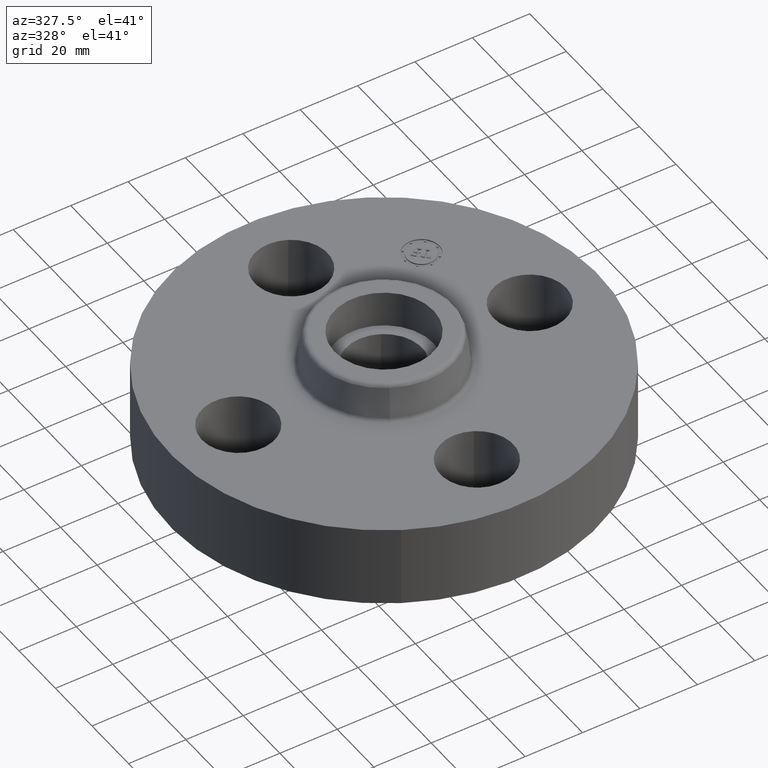
[diagram: clean part render]
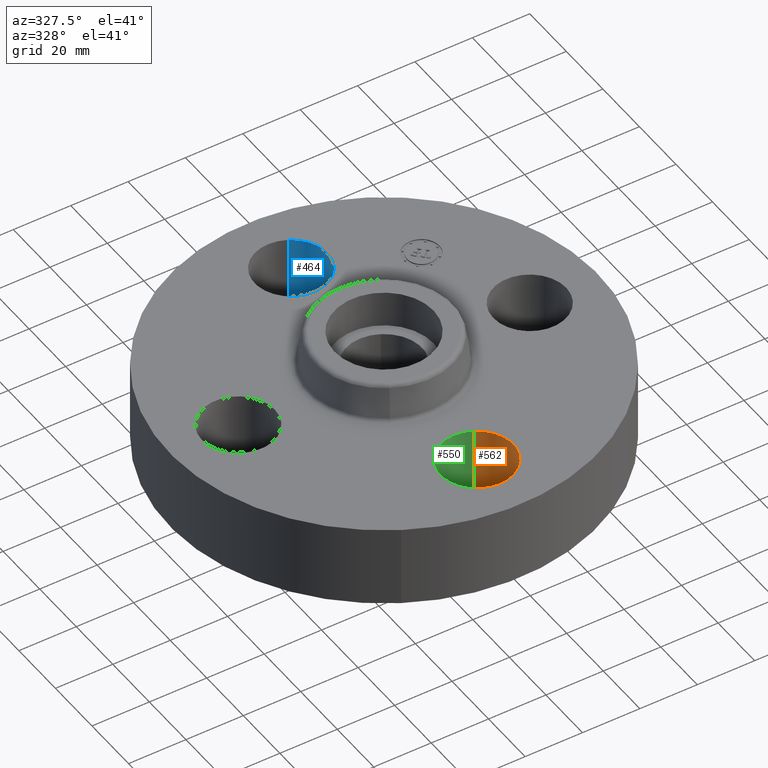
[diagram: same view with three faces highlighted in distinct colors, each labeled with its STEP entity id]
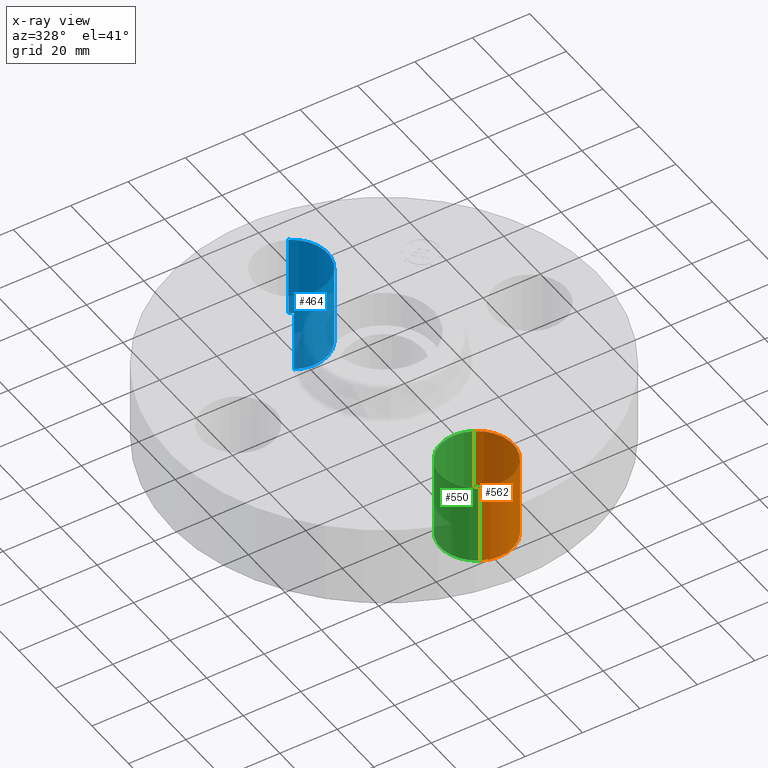
[diagram: x-ray of the same camera — body ghosted, the three highlighted faces saturated]
A machine part, auxiliary view with three faces highlighted in distinct colors.
The next image is the same camera in x-ray (body ghosted, the three faces saturated) — at least one of them is partly hidden behind the body in this view.
Their STEP definitions:

[orange] entity #562 — the highlighted cylindrical surface (partial cylindrical patch) has radius 12.7 mm, axis along (0, -0, -1).
#167=AXIS2_PLACEMENT_3D('Circle Axis2P3D',#165,#166,$) ;
#523=AXIS2_PLACEMENT_3D('Cylinder Axis2P3D',#520,#521,#522) ;
#553=AXIS2_PLACEMENT_3D('Circle Axis2P3D',#551,#552,$) ;
#165=CARTESIAN_POINT('Axis2P3D Location',(-6.99353086378E-017,-2.00000000001,0.)) ;
#169=CARTESIAN_POINT('Vertex',(0.239712769303,-1.56120871906,0.)) ;
#171=CARTESIAN_POINT('Vertex',(-0.239712769303,-2.43879128095,0.)) ;
#520=CARTESIAN_POINT('Axis2P3D Location',(1.22464679915E-016,-2.00000000001,1.11606299213)) ;
#525=CARTESIAN_POINT('Line Origine',(-0.239712769303,-2.43879128095,0.560000000002)) ;
#529=CARTESIAN_POINT('Vertex',(-0.239712769303,-2.43879128095,1.12)) ;
#532=CARTESIAN_POINT('Line Origine',(0.239712769303,-1.56120871906,0.560000000002)) ;
#536=CARTESIAN_POINT('Vertex',(0.239712769303,-1.56120871906,1.12)) ;
#551=CARTESIAN_POINT('Axis2P3D Location',(1.22464679915E-016,-2.00000000001,1.12)) ;
#166=DIRECTION('Axis2P3D Direction',(0.,0.,-0.0393700787402)) ;
#521=DIRECTION('Axis2P3D Direction',(0.,-0.,-0.0393700787402)) ;
#522=DIRECTION('Axis2P3D XDirection',(0.0188750212049,0.0345504945626,-0.)) ;
#526=DIRECTION('Vector Direction',(0.,0.,-0.0393700787402)) ;
#533=DIRECTION('Vector Direction',(0.,0.,-0.0393700787402)) ;
#552=DIRECTION('Axis2P3D Direction',(0.,-0.,-0.0393700787402)) ;
#527=VECTOR('Line Direction',#526,0.0393700787402) ;
#534=VECTOR('Line Direction',#533,0.0393700787402) ;
#557=ORIENTED_EDGE('',*,*,#538,.F.) ;
#558=ORIENTED_EDGE('',*,*,#173,.T.) ;
#559=ORIENTED_EDGE('',*,*,#531,.T.) ;
#560=ORIENTED_EDGE('',*,*,#555,.F.) ;
#562=ADVANCED_FACE('PartBody',(#561),#524,.F.) ;
#168=CIRCLE('generated circle',#167,0.500000000002) ;
#554=CIRCLE('generated circle',#553,0.500000000002) ;
#524=CYLINDRICAL_SURFACE('generated cylinder',#523,0.500000000002) ;
#173=EDGE_CURVE('',#170,#172,#168,.T.) ;
#531=EDGE_CURVE('',#172,#530,#528,.F.) ;
#538=EDGE_CURVE('',#170,#537,#535,.F.) ;
#555=EDGE_CURVE('',#537,#530,#554,.T.) ;
#556=EDGE_LOOP('',(#557,#558,#559,#560)) ;
#561=FACE_OUTER_BOUND('',#556,.T.) ;
#528=LINE('Line',#525,#527) ;
#535=LINE('Line',#532,#534) ;
#170=VERTEX_POINT('',#169) ;
#172=VERTEX_POINT('',#171) ;
#530=VERTEX_POINT('',#529) ;
#537=VERTEX_POINT('',#536) ;

[blue] entity #464 — the highlighted cylindrical surface (partial cylindrical patch) has radius 12.7 mm, axis along (0, 0, -1).
#212=AXIS2_PLACEMENT_3D('Circle Axis2P3D',#210,#211,$) ;
#437=AXIS2_PLACEMENT_3D('Cylinder Axis2P3D',#434,#435,#436) ;
#455=AXIS2_PLACEMENT_3D('Circle Axis2P3D',#453,#454,$) ;
#205=CARTESIAN_POINT('Vertex',(-0.239712769303,1.56120871906,0.)) ;
#207=CARTESIAN_POINT('Vertex',(0.239712769303,2.43879128095,0.)) ;
#210=CARTESIAN_POINT('Axis2P3D Location',(-5.59482469102E-016,2.00000000001,0.)) ;
#434=CARTESIAN_POINT('Axis2P3D Location',(-3.67394039746E-016,2.00000000001,1.11606299213)) ;
#439=CARTESIAN_POINT('Line Origine',(0.239712769303,2.43879128095,0.560000000002)) ;
#443=CARTESIAN_POINT('Vertex',(0.239712769303,2.43879128095,1.12)) ;
#446=CARTESIAN_POINT('Line Origine',(-0.239712769303,1.56120871906,0.560000000002)) ;
#450=CARTESIAN_POINT('Vertex',(-0.239712769303,1.56120871906,1.12)) ;
#453=CARTESIAN_POINT('Axis2P3D Location',(-3.67394039746E-016,2.00000000001,1.12)) ;
#211=DIRECTION('Axis2P3D Direction',(0.,0.,-0.0393700787402)) ;
#435=DIRECTION('Axis2P3D Direction',(0.,0.,-0.0393700787402)) ;
#436=DIRECTION('Axis2P3D XDirection',(-0.0188750212049,-0.0345504945626,-0.)) ;
#440=DIRECTION('Vector Direction',(0.,0.,-0.0393700787402)) ;
#447=DIRECTION('Vector Direction',(0.,0.,-0.0393700787402)) ;
#454=DIRECTION('Axis2P3D Direction',(0.,0.,-0.0393700787402)) ;
#441=VECTOR('Line Direction',#440,0.0393700787402) ;
#448=VECTOR('Line Direction',#447,0.0393700787402) ;
#459=ORIENTED_EDGE('',*,*,#445,.F.) ;
#460=ORIENTED_EDGE('',*,*,#214,.T.) ;
#461=ORIENTED_EDGE('',*,*,#452,.T.) ;
#462=ORIENTED_EDGE('',*,*,#457,.F.) ;
#464=ADVANCED_FACE('PartBody',(#463),#438,.F.) ;
#213=CIRCLE('generated circle',#212,0.500000000002) ;
#456=CIRCLE('generated circle',#455,0.500000000002) ;
#438=CYLINDRICAL_SURFACE('generated cylinder',#437,0.500000000002) ;
#214=EDGE_CURVE('',#208,#206,#213,.T.) ;
#445=EDGE_CURVE('',#208,#444,#442,.F.) ;
#452=EDGE_CURVE('',#206,#451,#449,.F.) ;
#457=EDGE_CURVE('',#444,#451,#456,.T.) ;
#458=EDGE_LOOP('',(#459,#460,#461,#462)) ;
#463=FACE_OUTER_BOUND('',#458,.T.) ;
#442=LINE('Line',#439,#441) ;
#449=LINE('Line',#446,#448) ;
#206=VERTEX_POINT('',#205) ;
#208=VERTEX_POINT('',#207) ;
#444=VERTEX_POINT('',#443) ;
#451=VERTEX_POINT('',#450) ;

[green] entity #550 — the highlighted cylindrical surface (partial cylindrical patch) has radius 12.7 mm, axis along (0, -0, -1).
#176=AXIS2_PLACEMENT_3D('Circle Axis2P3D',#174,#175,$) ;
#523=AXIS2_PLACEMENT_3D('Cylinder Axis2P3D',#520,#521,#522) ;
#541=AXIS2_PLACEMENT_3D('Circle Axis2P3D',#539,#540,$) ;
#169=CARTESIAN_POINT('Vertex',(0.239712769303,-1.56120871906,0.)) ;
#171=CARTESIAN_POINT('Vertex',(-0.239712769303,-2.43879128095,0.)) ;
#174=CARTESIAN_POINT('Axis2P3D Location',(2.79741234551E-016,-2.00000000001,0.)) ;
#520=CARTESIAN_POINT('Axis2P3D Location',(1.22464679915E-016,-2.00000000001,1.11606299213)) ;
#525=CARTESIAN_POINT('Line Origine',(-0.239712769303,-2.43879128095,0.560000000002)) ;
#529=CARTESIAN_POINT('Vertex',(-0.239712769303,-2.43879128095,1.12)) ;
#532=CARTESIAN_POINT('Line Origine',(0.239712769303,-1.56120871906,0.560000000002)) ;
#536=CARTESIAN_POINT('Vertex',(0.239712769303,-1.56120871906,1.12)) ;
#539=CARTESIAN_POINT('Axis2P3D Location',(1.22464679915E-016,-2.00000000001,1.12)) ;
#175=DIRECTION('Axis2P3D Direction',(0.,0.,-0.0393700787402)) ;
#521=DIRECTION('Axis2P3D Direction',(0.,-0.,-0.0393700787402)) ;
#522=DIRECTION('Axis2P3D XDirection',(0.0188750212049,0.0345504945626,-0.)) ;
#526=DIRECTION('Vector Direction',(0.,0.,-0.0393700787402)) ;
#533=DIRECTION('Vector Direction',(0.,0.,-0.0393700787402)) ;
#540=DIRECTION('Axis2P3D Direction',(0.,-0.,-0.0393700787402)) ;
#527=VECTOR('Line Direction',#526,0.0393700787402) ;
#534=VECTOR('Line Direction',#533,0.0393700787402) ;
#545=ORIENTED_EDGE('',*,*,#531,.F.) ;
#546=ORIENTED_EDGE('',*,*,#178,.T.) ;
#547=ORIENTED_EDGE('',*,*,#538,.T.) ;
#548=ORIENTED_EDGE('',*,*,#543,.F.) ;
#550=ADVANCED_FACE('PartBody',(#549),#524,.F.) ;
#177=CIRCLE('generated circle',#176,0.500000000002) ;
#542=CIRCLE('generated circle',#541,0.500000000002) ;
#524=CYLINDRICAL_SURFACE('generated cylinder',#523,0.500000000002) ;
#178=EDGE_CURVE('',#172,#170,#177,.T.) ;
#531=EDGE_CURVE('',#172,#530,#528,.F.) ;
#538=EDGE_CURVE('',#170,#537,#535,.F.) ;
#543=EDGE_CURVE('',#530,#537,#542,.T.) ;
#544=EDGE_LOOP('',(#545,#546,#547,#548)) ;
#549=FACE_OUTER_BOUND('',#544,.T.) ;
#528=LINE('Line',#525,#527) ;
#535=LINE('Line',#532,#534) ;
#170=VERTEX_POINT('',#169) ;
#172=VERTEX_POINT('',#171) ;
#530=VERTEX_POINT('',#529) ;
#537=VERTEX_POINT('',#536) ;